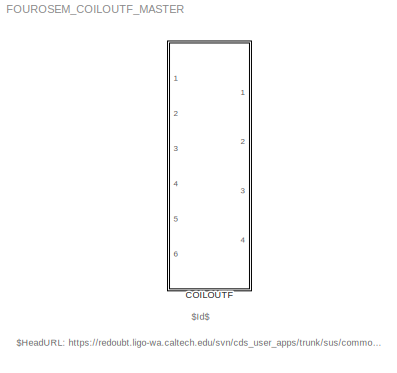
MODEL FOUROSEM_COILOUTF_MASTER
KIND library
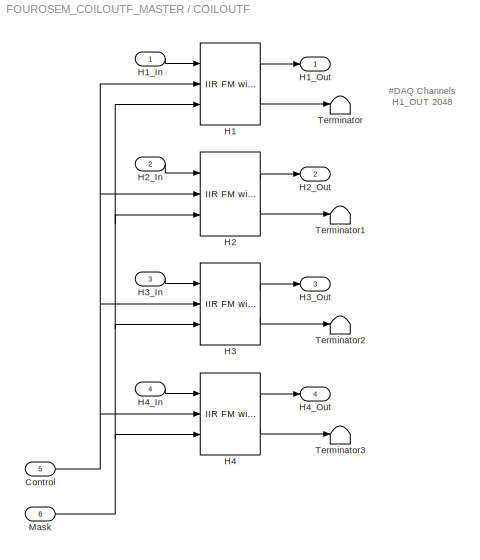
BLOCK [SubSystem] COILOUTF
  Ports = [6, 4]
  RequestExecContextInheritance = off
  SID = 1
  Variant = off
BLOCK [Inport] COILOUTF/Control
  IconDisplay = Port number
  Port = 5
  SID = 35
BLOCK [Reference] COILOUTF/H1  REF=cdsFiltCtrl/IIR FM with control
  AttributesFormatString = %<Tag>
  Description = cdsFiltCntrl is the standard IIR filter module (exactly the same as cdsFilt) but with added control data output 'Ctrl'. Filter module digital signal output appears on the first output, which is called 'Val'. 'Ctrl' output has a bit pattern encoding the state of filter's on/off switches (FM1 through FM10). The bit values are:\n                                                                        ...<+4621ch>  <repeated x4 — deduplicated; at blocks: H1, H2, H3, H4>
  Ports = [3, 2]
  SID = 16
  SourceBlock = cdsFiltCtrl/IIR FM with control
  SourceType = SubSystem
  Tag = cdsFiltCtrl
BLOCK [Inport] COILOUTF/H1_In
  IconDisplay = Port number
  SID = 2
BLOCK [Outport] COILOUTF/H1_Out
  IconDisplay = Port number
  SID = 18
BLOCK [Reference] COILOUTF/H2  REF=cdsFiltCtrl/IIR FM with control
  AttributesFormatString = %<Tag>
  Ports = [3, 2]
  SID = 11
  SourceBlock = cdsFiltCtrl/IIR FM with control
  SourceType = SubSystem
  Tag = cdsFiltCtrl
BLOCK [Inport] COILOUTF/H2_In
  IconDisplay = Port number
  Port = 2
  SID = 3
BLOCK [Outport] COILOUTF/H2_Out
  IconDisplay = Port number
  Port = 2
  SID = 19
BLOCK [Reference] COILOUTF/H3  REF=cdsFiltCtrl/IIR FM with control
  AttributesFormatString = %<Tag>
  Ports = [3, 2]
  SID = 17
  SourceBlock = cdsFiltCtrl/IIR FM with control
  SourceType = SubSystem
  Tag = cdsFiltCtrl
BLOCK [Inport] COILOUTF/H3_In
  IconDisplay = Port number
  Port = 3
  SID = 4
BLOCK [Outport] COILOUTF/H3_Out
  IconDisplay = Port number
  Port = 3
  SID = 20
BLOCK [Reference] COILOUTF/H4  REF=cdsFiltCtrl/IIR FM with control
  AttributesFormatString = %<Tag>
  Ports = [3, 2]
  SID = 12
  SourceBlock = cdsFiltCtrl/IIR FM with control
  SourceType = SubSystem
  Tag = cdsFiltCtrl
BLOCK [Inport] COILOUTF/H4_In
  IconDisplay = Port number
  Port = 4
  SID = 5
BLOCK [Outport] COILOUTF/H4_Out
  IconDisplay = Port number
  Port = 4
  SID = 21
BLOCK [Inport] COILOUTF/Mask
  IconDisplay = Port number
  Port = 6
  SID = 36
BLOCK [Terminator] COILOUTF/Terminator
  SID = 31
BLOCK [Terminator] COILOUTF/Terminator1
  SID = 32
BLOCK [Terminator] COILOUTF/Terminator2
  SID = 33
BLOCK [Terminator] COILOUTF/Terminator3
  SID = 34
ANNOTATION (root): $HeadURL: https://redoubt.ligo-wa.caltech.edu/svn/cds_user_apps/trunk/sus/common/models/FOUROSEM_COILOUTF_MASTER.mdl $
ANNOTATION (root): $Id$
ANNOTATION COILOUTF: #DAQ Channels\nH1_OUT 2048
NET COILOUTF/Control:1 -> COILOUTF/H1:2, COILOUTF/H2:2, COILOUTF/H3:2, COILOUTF/H4:2
LINE COILOUTF/H1:1 -> COILOUTF/H1_Out:1
LINE COILOUTF/H1:2 -> COILOUTF/Terminator:1
LINE COILOUTF/H1_In:1 -> COILOUTF/H1:1
LINE COILOUTF/H2:1 -> COILOUTF/H2_Out:1
LINE COILOUTF/H2:2 -> COILOUTF/Terminator1:1
LINE COILOUTF/H2_In:1 -> COILOUTF/H2:1
LINE COILOUTF/H3:1 -> COILOUTF/H3_Out:1
LINE COILOUTF/H3:2 -> COILOUTF/Terminator2:1
LINE COILOUTF/H3_In:1 -> COILOUTF/H3:1
LINE COILOUTF/H4:1 -> COILOUTF/H4_Out:1
LINE COILOUTF/H4:2 -> COILOUTF/Terminator3:1
LINE COILOUTF/H4_In:1 -> COILOUTF/H4:1
NET COILOUTF/Mask:1 -> COILOUTF/H1:3, COILOUTF/H2:3, COILOUTF/H3:3, COILOUTF/H4:3
note: NET lines group one-source signal fan-out (src -> all destinations, sorted); 1:1 wires keep LINE
